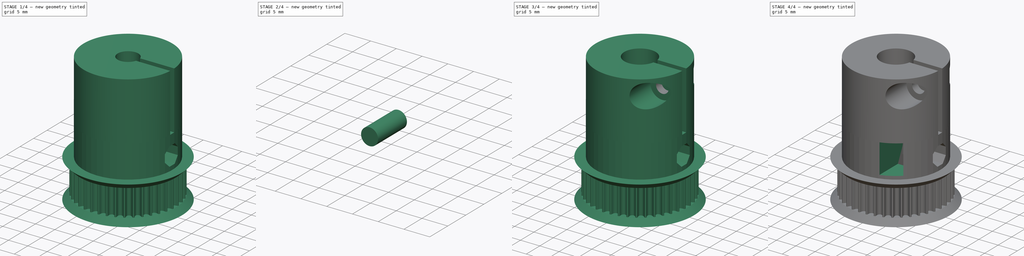
[diagram: build sequence overview — one tinted view per stage of 4, left to right]
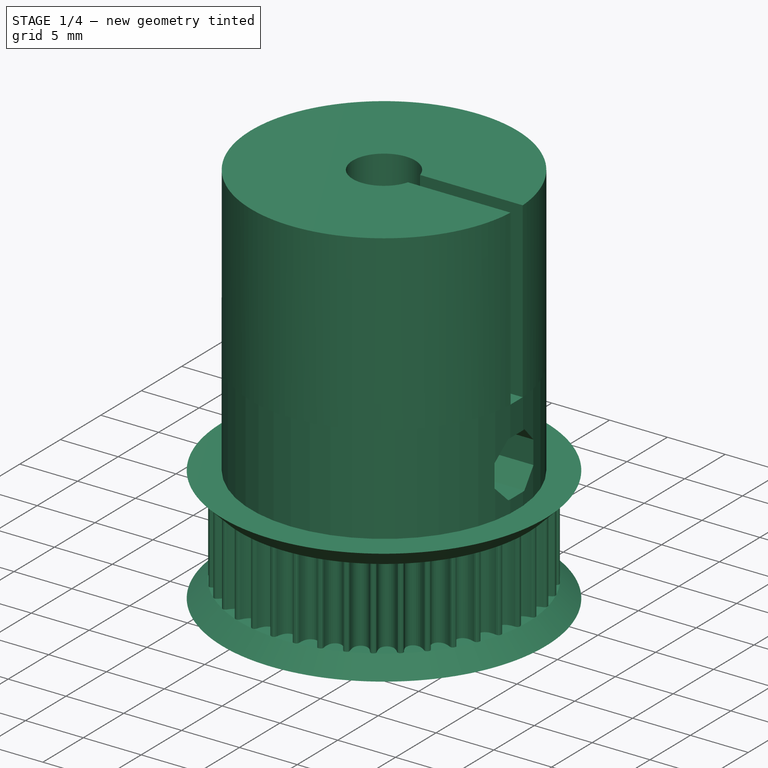
[diagram: stage 1 of 4 — iso view after this stage's code; geometry added in this stage tinted green]
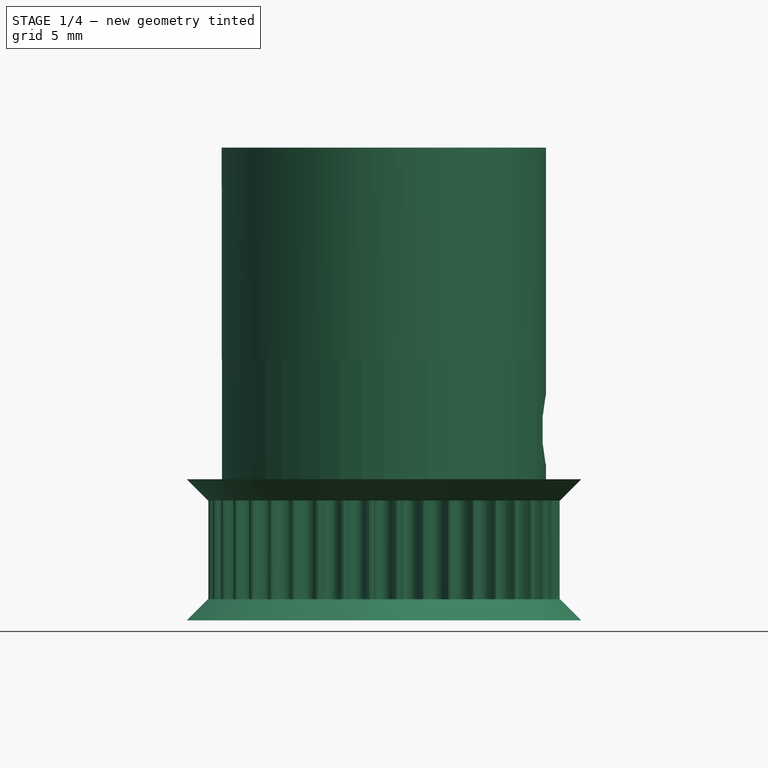
[diagram: stage 1 of 4 — front view after this stage's code; geometry added in this stage tinted green]
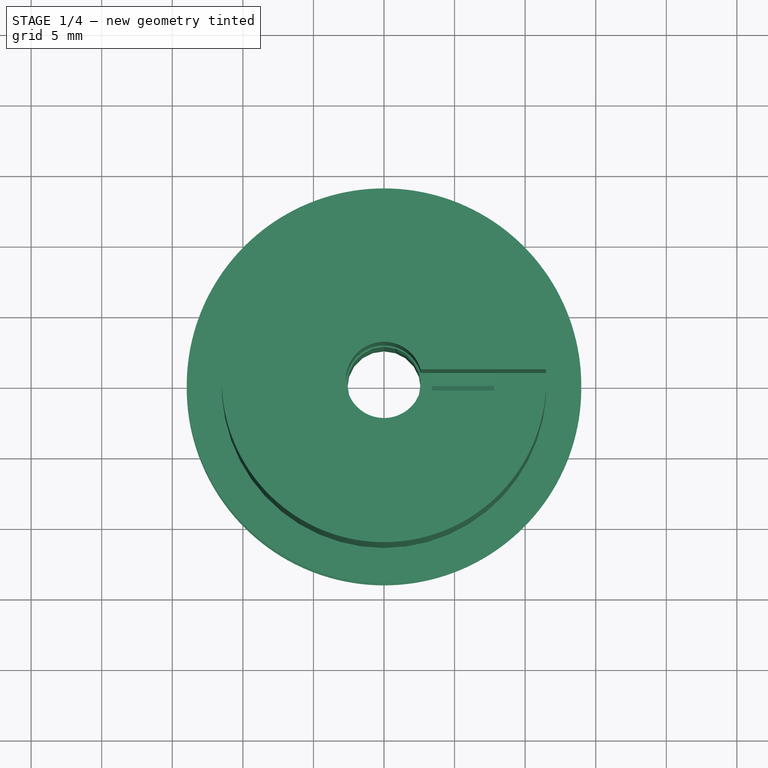
[diagram: stage 1 of 4 — top view after this stage's code; geometry added in this stage tinted green]
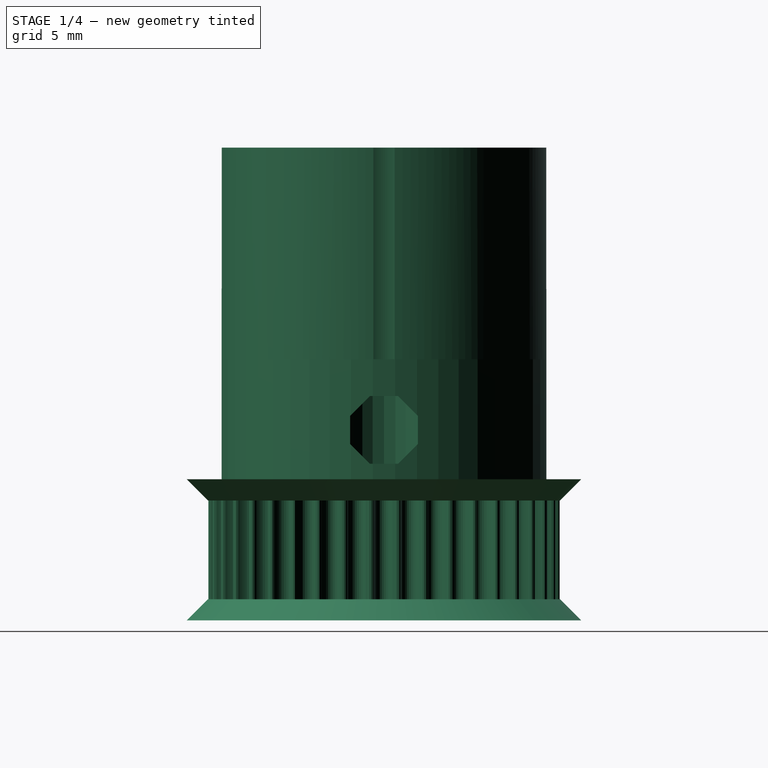
[diagram: stage 1 of 4 — right view after this stage's code; geometry added in this stage tinted green]
FCSTD DOCUMENT  (FreeCAD 0.16R6433 (Git))
Label: acopleConPolea
License: All rights reserved
LicenseURL: http://en.wikipedia.org/wiki/All_rights_reserved
objects: Sketcher::SketchObject×6, PartDesign::Pad×3, Part::Extrusion×2, PartDesign::Pocket×2, Part::Cut×2, Part::Feature×1, Part::FeaturePython×1, App::DocumentObjectGroup×1
note: 22 computed .brp shape members not serialized (recipe doc carries the construction recipe); baked Part::Feature solids carry a one-line shape summary decoded from their .brp

FEATURE [Sketcher::SketchObject] Sketch
  ExternalGeometry = -> [Solid]
  Placement = pos=(0,0,18.5) rot=(0,0,1;0rad)
  Support = -> Solid [Face436]
  sketch-geometry (3):
    g0: Circle [constr] CenterX=0 CenterY=1.18459e-05 CenterZ=0 NormalX=0 NormalY=0 NormalZ=1 Radius=11.5
    g1: Circle CenterX=0 CenterY=0 CenterZ=0 NormalX=0 NormalY=0 NormalZ=1 Radius=11.5
    g2: Circle CenterX=0 CenterY=0 CenterZ=0 NormalX=0 NormalY=0 NormalZ=1 Radius=2.7
  constraints (7):
    c: PointOnObject(g-5,g0)
    c: PointOnObject(g-3,g0)
    c: PointOnObject(g-4,g0)
    c: Coincident(g1,g-1)
    c: Radius(g1) = 11.5
    c: Coincident(g2,g-1)
    c: Radius(g2) = 2.7
FEATURE [PartDesign::Pad] Pad
  Length = 15
  Length2 = 100
  Sketch = -> Sketch
  Type = 0
FEATURE [Sketcher::SketchObject] Sketch001
  ExternalGeometry = -> [Pad]
  Placement = pos=(0,0,33.5) rot=(0,0,1;0rad)
  Support = -> Pad [Face1561]
  sketch-geometry (4):
    g0: LineSegment StartX=2.59374 StartY=0.75 StartZ=0 EndX=16 EndY=0.75 EndZ=0
    g1: LineSegment StartX=16 StartY=0.75 StartZ=0 EndX=16 EndY=-0.75 EndZ=0
    g2: LineSegment StartX=16 StartY=-0.75 StartZ=0 EndX=2.59374 EndY=-0.75 EndZ=0
    g3: LineSegment StartX=2.59374 StartY=-0.75 StartZ=0 EndX=2.59374 EndY=0.75 EndZ=0
  constraints (11):
    c: Coincident(g0,g1)
    c: Coincident(g1,g2)
    c: Coincident(g2,g3)
    c: Coincident(g3,g0)
    c: Horizontal(g0)
    c: Horizontal(g2)
    c: Vertical(g1)
    c: Vertical(g3)
    c: PointOnObject(g0,g-3)
    c: PointOnObject(g2,g-3)
    c: Distance(g1) = 1.5
FEATURE [PartDesign::Pocket] Pocket
  Length = 15
  Sketch = -> Sketch001
  Type = 0
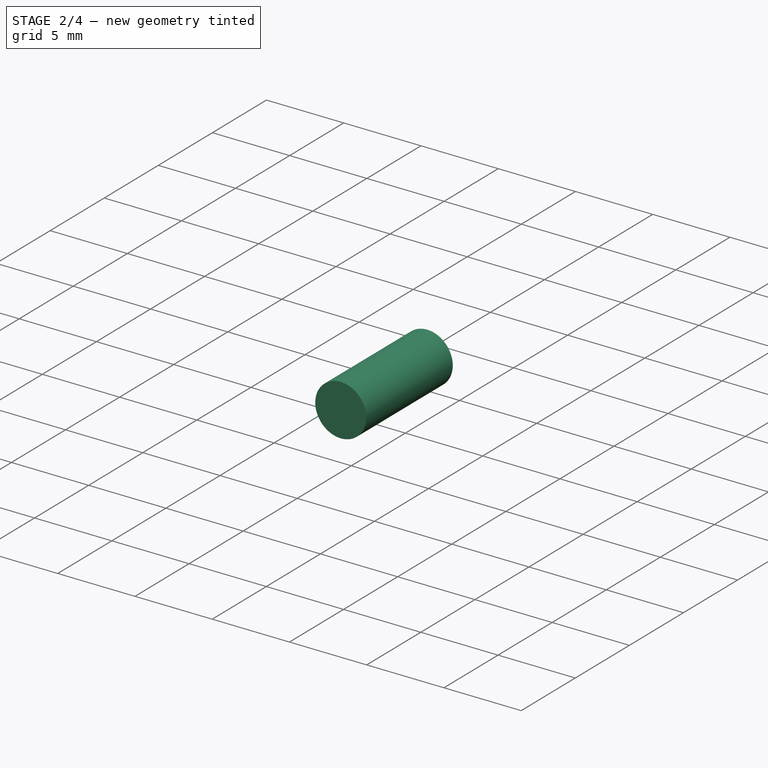
[diagram: stage 2 of 4 — iso view after this stage's code; geometry added in this stage tinted green]
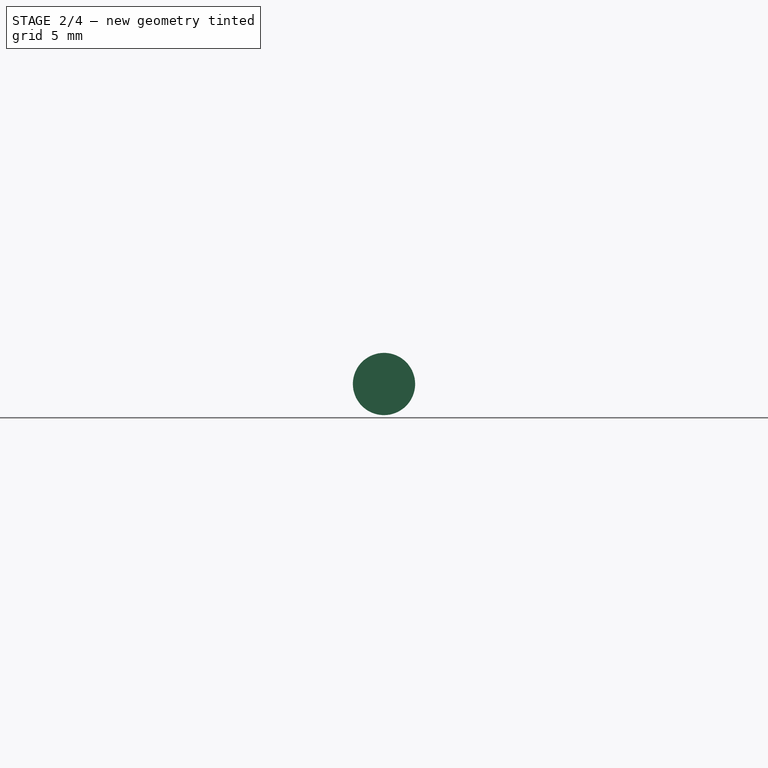
[diagram: stage 2 of 4 — front view after this stage's code; geometry added in this stage tinted green]
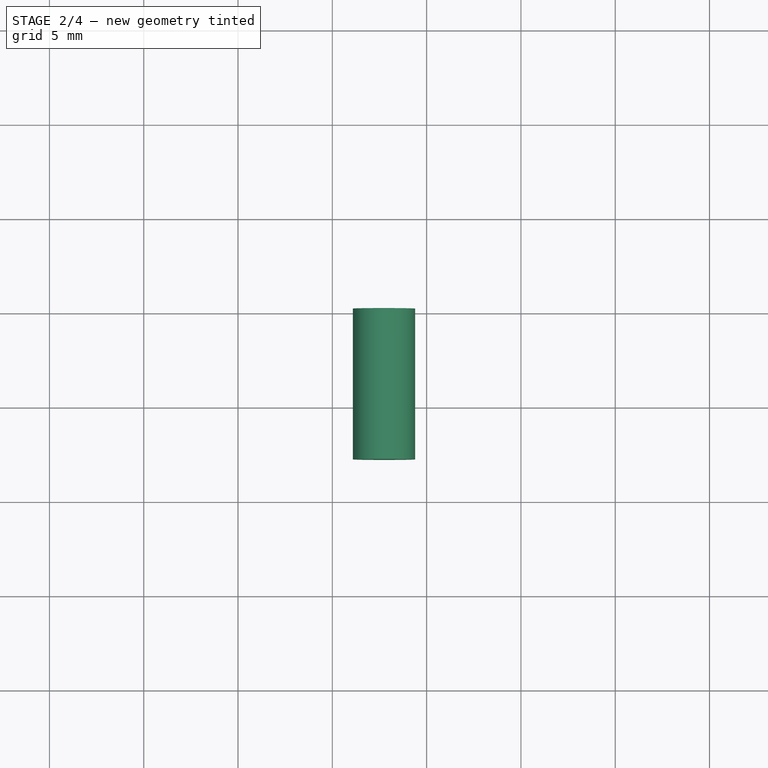
[diagram: stage 2 of 4 — top view after this stage's code; geometry added in this stage tinted green]
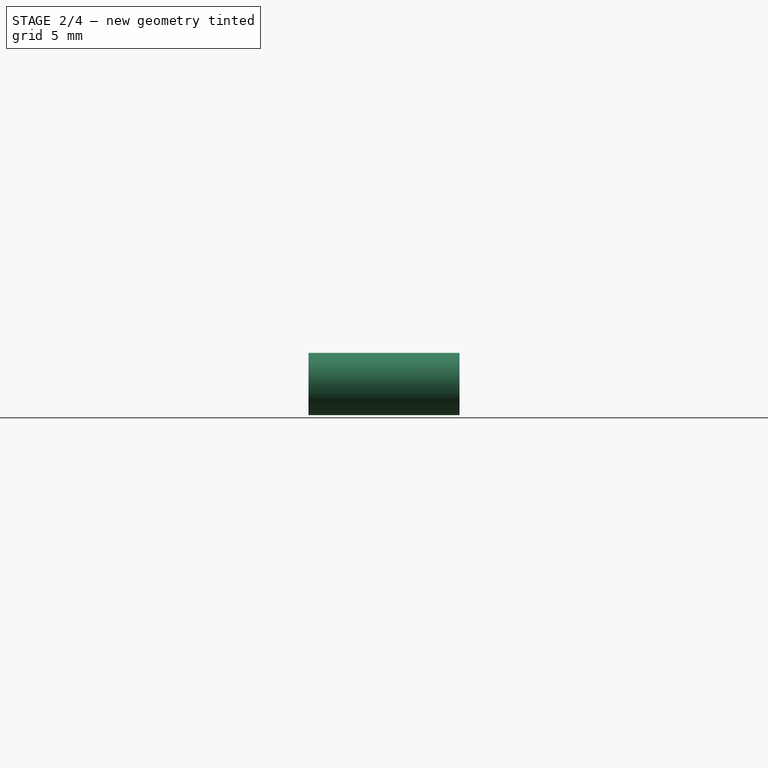
[diagram: stage 2 of 4 — right view after this stage's code; geometry added in this stage tinted green]
FEATURE [Sketcher::SketchObject] Sketch002
  ExternalGeometry = -> [Pocket]
  Placement = pos=(0,0,33.5) rot=(0,0,1;0rad)
  Support = -> Pocket [Face1563]
  sketch-geometry (1):
    g0: Circle CenterX=0 CenterY=0 CenterZ=0 NormalX=0 NormalY=0 NormalZ=1 Radius=4.075
  constraints (2):
    c: Coincident(g0,g-1)
    c: Radius(g0) = 4.075
FEATURE [PartDesign::Pocket] Pocket001
  Length = 15
  Sketch = -> Sketch002
  Type = 0
FEATURE [Sketcher::SketchObject] Sketch003
  ExternalGeometry = -> [Pocket001]
  Placement = pos=(0,0.75,0) rot=(1,0,0;1.5708rad)
  Support = -> Pocket001 [Face1564]
  sketch-geometry (3):
    g0: LineSegment [constr] StartX=4.00539 StartY=29.5448 StartZ=0 EndX=7.74045 EndY=29.5448 EndZ=0
    g1: LineSegment [constr] StartX=7.74045 StartY=29.5448 StartZ=0 EndX=11.4755 EndY=29.5448 EndZ=0
    g2: Circle CenterX=7.74045 CenterY=29.5448 CenterZ=0 NormalX=0 NormalY=0 NormalZ=1 Radius=1.65
  constraints (8):
    c: PointOnObject(g0,g-3)
    c: Horizontal(g0)
    c: Coincident(g1,g0)
    c: PointOnObject(g1,g-4)
    c: Horizontal(g1)
    c: Equal(g1,g0)
    c: Coincident(g2,g0)
    c: Radius(g2) = 1.65
FEATURE [Part::Extrusion] Extrude001
  Base = -> Sketch003
  Dir = (0,8,0)
  Placement = pos=(0,-3.5,0) rot=(0,0,1;0rad)
  Solid = true
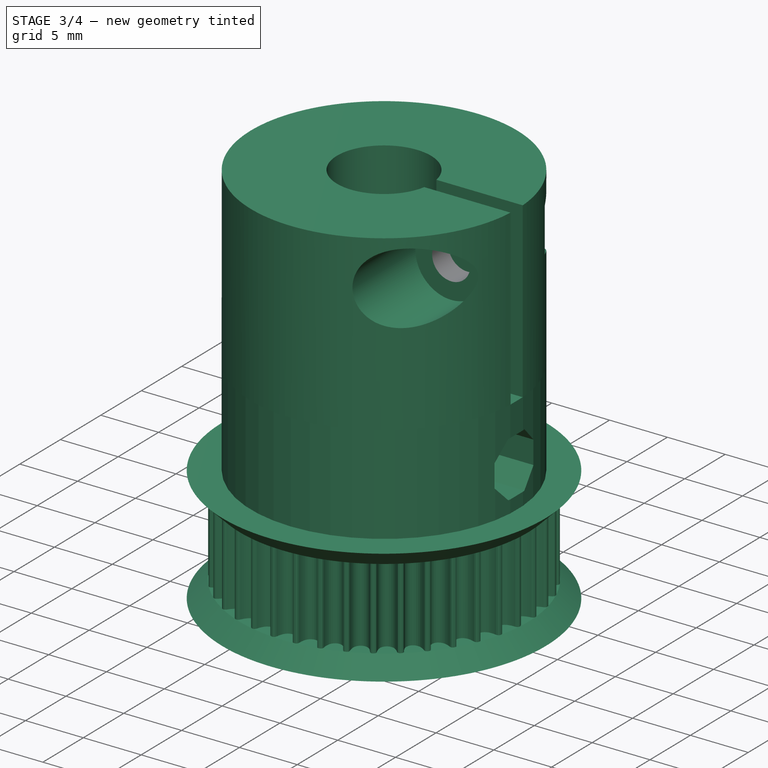
[diagram: stage 3 of 4 — iso view after this stage's code; geometry added in this stage tinted green]
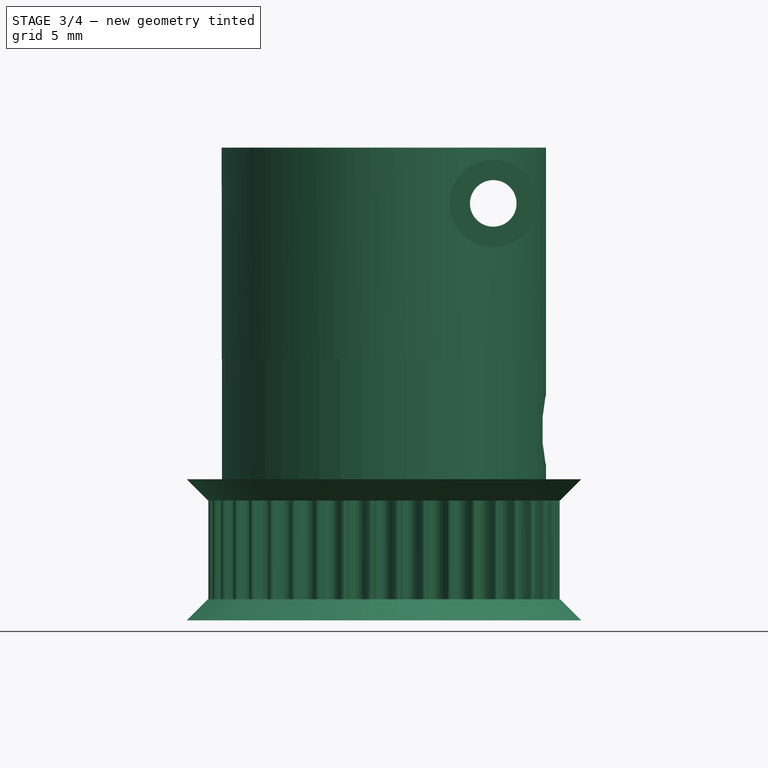
[diagram: stage 3 of 4 — front view after this stage's code; geometry added in this stage tinted green]
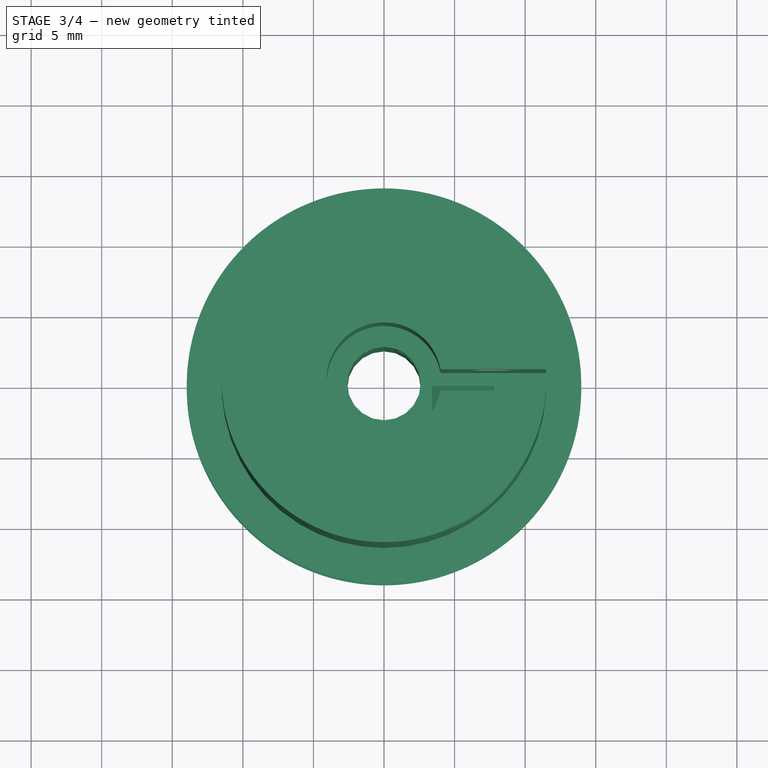
[diagram: stage 3 of 4 — top view after this stage's code; geometry added in this stage tinted green]
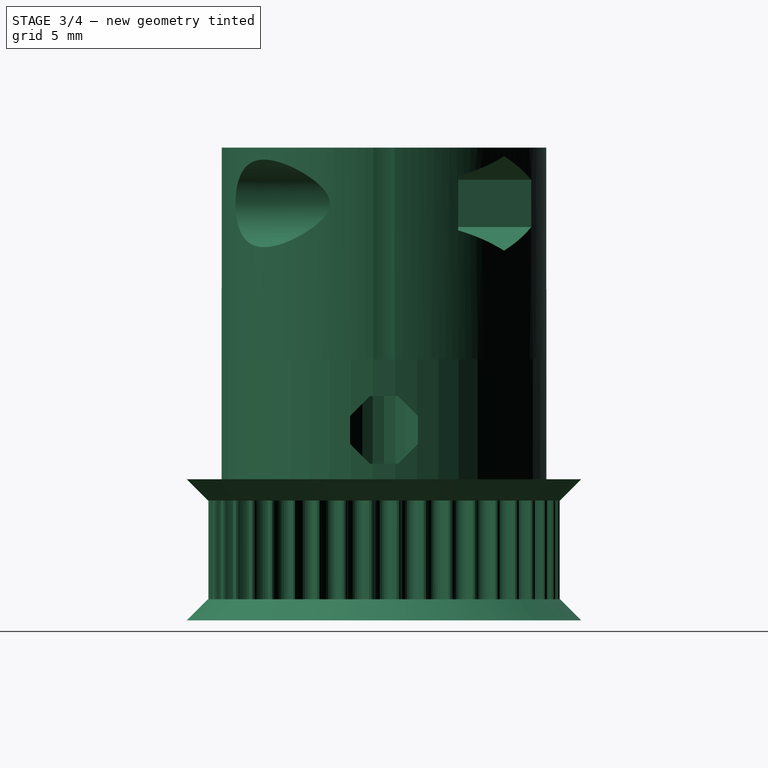
[diagram: stage 3 of 4 — right view after this stage's code; geometry added in this stage tinted green]
FEATURE [Sketcher::SketchObject] Sketch004
  ExternalGeometry = -> [Extrude001]
  Placement = pos=(0,-2.75,0) rot=(1,0,0;1.5708rad)
  Support = -> Extrude001 [Face2]
  sketch-geometry (1):
    g0: Circle CenterX=7.74045 CenterY=29.5448 CenterZ=0 NormalX=0 NormalY=0 NormalZ=1 Radius=3.1
  constraints (2):
    c: Coincident(g0,g-3)
    c: Radius(g0) = 3.1
FEATURE [PartDesign::Pad] Pad001
  Length = 10
  Length2 = 100
  Placement = pos=(0,-3.5,0) rot=(0,0,1;0rad)
  Sketch = -> Sketch004
  Type = 0
FEATURE [Sketcher::SketchObject] Sketch005
  ExternalGeometry = -> [Pad001]
  Placement = pos=(0,5.25,0) rot=(0,0.707107,0.707107;3.14159rad)
  Support = -> Pad001 [Face1]
  sketch-geometry (7):
    g0: LineSegment StartX=-4.84045 StartY=27.8705 StartZ=0 EndX=-4.84045 EndY=31.2191 EndZ=0
    g1: LineSegment StartX=-4.84045 StartY=31.2191 StartZ=0 EndX=-7.74045 EndY=32.8934 EndZ=0
    g2: LineSegment StartX=-7.74045 StartY=32.8934 StartZ=0 EndX=-10.6405 EndY=31.2191 EndZ=0
    g3: LineSegment StartX=-10.6405 StartY=31.2191 StartZ=0 EndX=-10.6405 EndY=27.8705 EndZ=0
    g4: LineSegment StartX=-10.6405 StartY=27.8705 StartZ=0 EndX=-7.74045 EndY=26.1961 EndZ=0
    g5: LineSegment StartX=-7.74045 StartY=26.1961 StartZ=0 EndX=-4.84045 EndY=27.8705 EndZ=0
    g6: Circle [constr] CenterX=-7.74045 CenterY=29.5448 CenterZ=0 NormalX=0 NormalY=0 NormalZ=1 Radius=3.34863
  constraints (16):
    c: Coincident(g0,g1)
    c: Coincident(g1,g2)
    c: Coincident(g2,g3)
    c: Coincident(g3,g4)
    c: Coincident(g4,g5)
    c: Coincident(g5,g0)
    c: Equal(g0, g1-g5) x5
    c: PointOnObject(g0,g6)
    c: PointOnObject(g1,g6)
    c: PointOnObject(g2,g6)
    c: PointOnObject(g3,g6)
    c: PointOnObject(g4,g6)
    c: PointOnObject(g5,g6)
    c: Coincident(g6,g-3)
    c: Vertical(g0)
    c: Distance(g2,g0) = 5.8
FEATURE [PartDesign::Pad] Pad002
  Length = 10
  Length2 = 100
  Placement = pos=(0,-3.5,0) rot=(0,0,1;0rad)
  Sketch = -> Sketch005
  Type = 0
FEATURE [Part::Cut] Cut
  Base = -> Pocket001
  Tool = -> Pad002
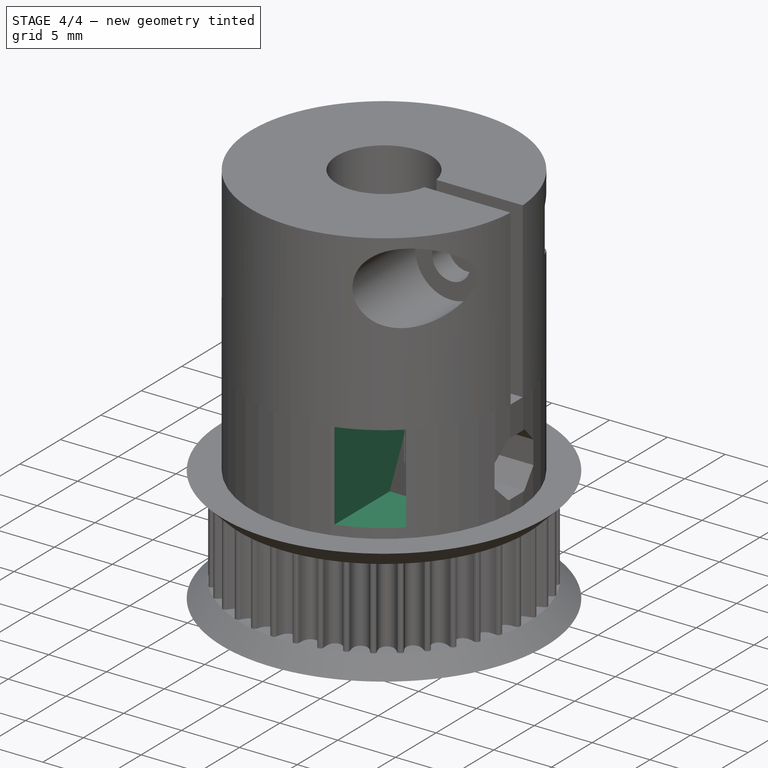
[diagram: stage 4 of 4 — iso view after this stage's code; geometry added in this stage tinted green]
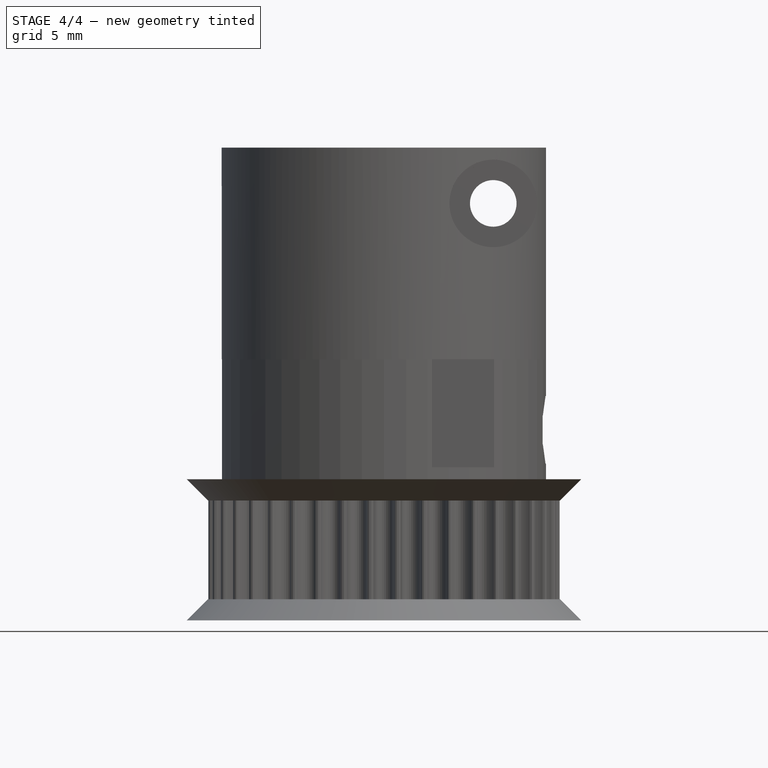
[diagram: stage 4 of 4 — front view after this stage's code; geometry added in this stage tinted green]
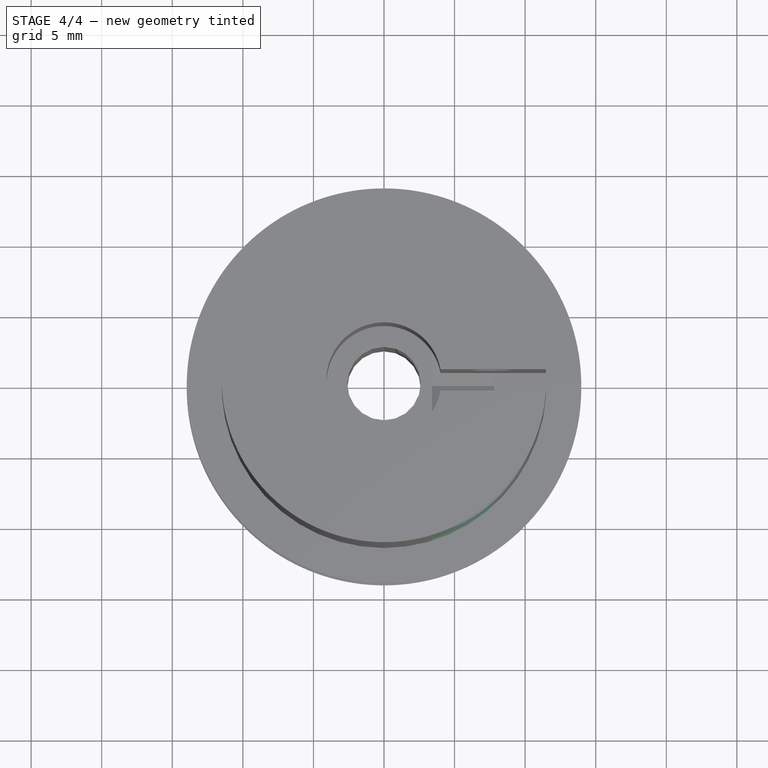
[diagram: stage 4 of 4 — top view after this stage's code; geometry added in this stage tinted green]
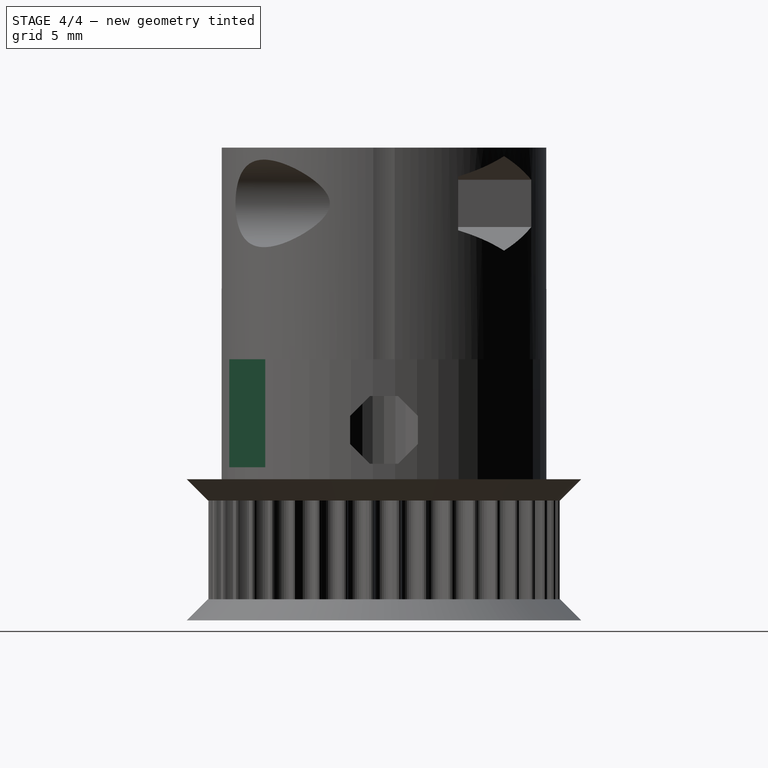
[diagram: stage 4 of 4 — right view after this stage's code; geometry added in this stage tinted green]
FEATURE [Part::Feature] Solid
  shape: bbox 27.96 x 27.96 x 18.5 mm, 2152 faces (baked)
FEATURE [Part::FeaturePython] Facebinder  # WARN: FeaturePython — macro-defined, semantics opaque (R4)
  Faces = -> [Solid]
FEATURE [Part::Extrusion] Extrude
  Base = -> Facebinder
  Dir = (0,-10,0)
  Solid = true
FEATURE [Part::Cut] Cut001
  Base = -> Cut
  Tool = -> Extrude
FEATURE [App::DocumentObjectGroup] Grupo
  Group = -> [Extrude001,Pad001,Cut001]
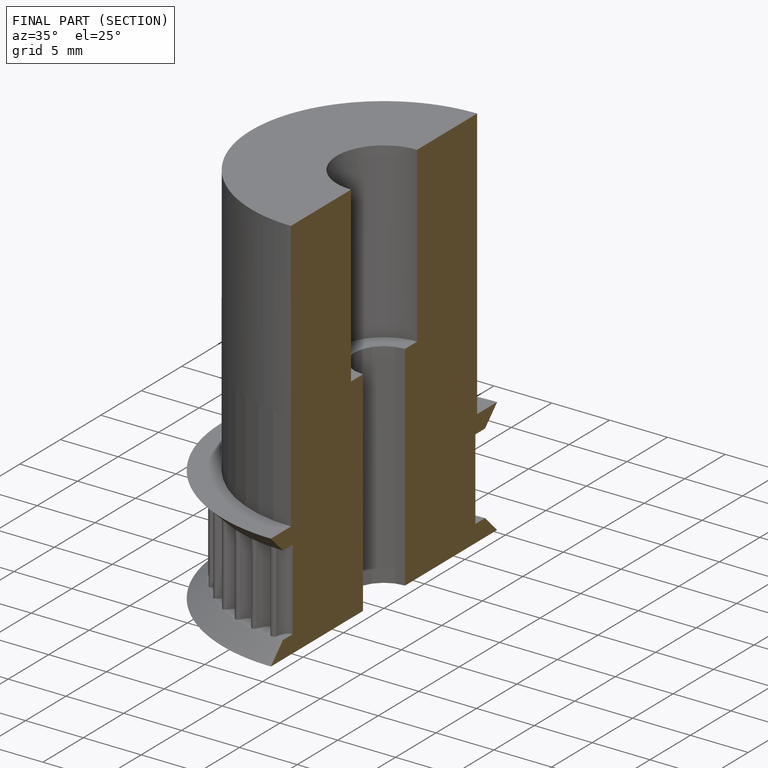
[diagram: finished part — half-section view (interior)]
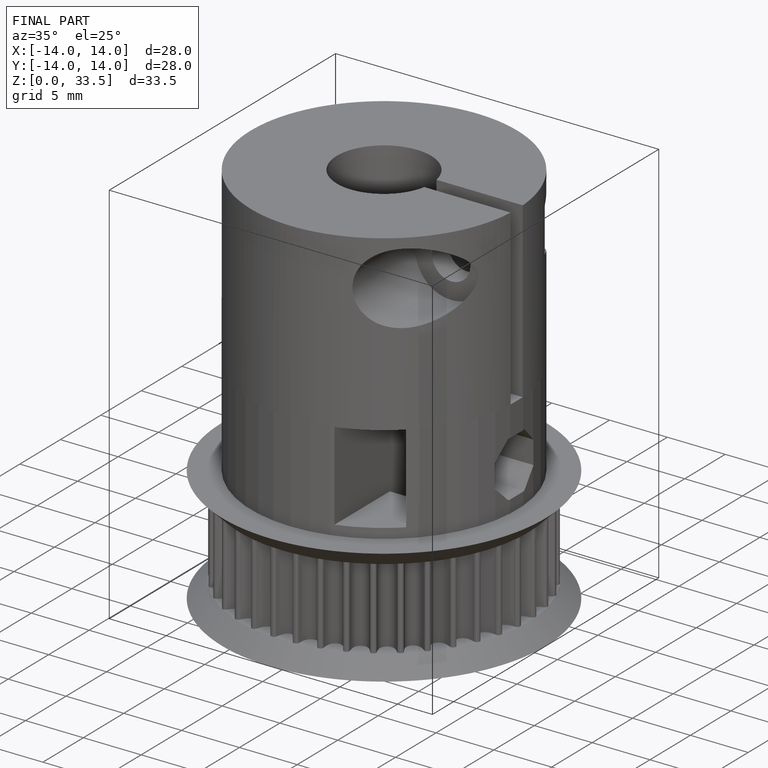
[diagram: finished part — iso view with bounding-box wireframe]
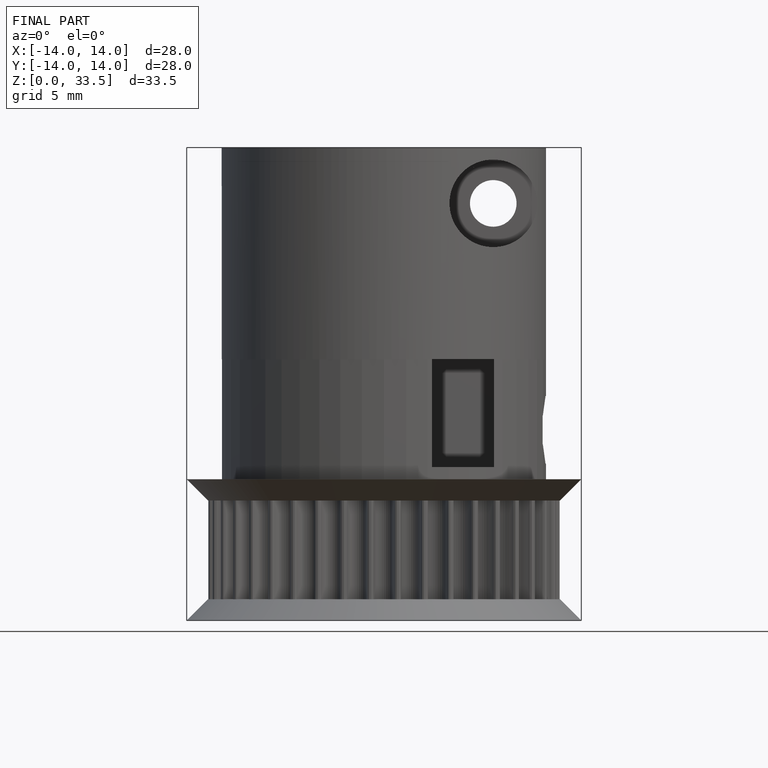
[diagram: finished part — front view with bounding-box wireframe]
